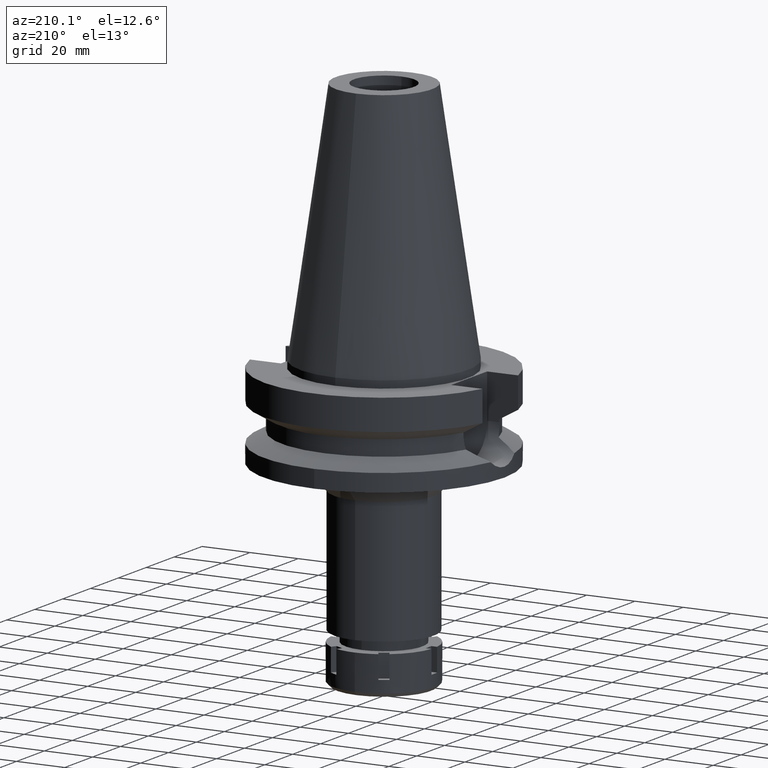
[diagram: clean part render]
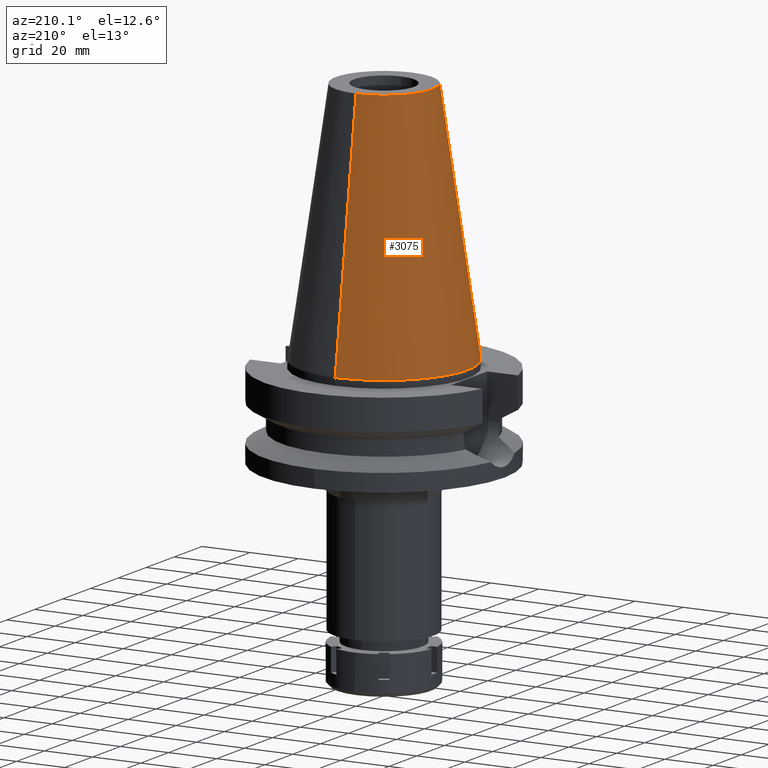
[diagram: same view with one face highlighted and labeled with its STEP entity id]
A machine part, auxiliary view. The second image highlights one B-rep face of the part: STEP entity #3075.
In plain terms, the highlighted conical surface has half-angle 8.297 deg.
Its self-contained STEP definition (entity closure, byte-faithful):
#20 = ORIENTED_EDGE ( 'NONE', *, *, #1357, .F. ) ;
#29 = CIRCLE ( 'NONE', #3298, 20.07942971896000017 ) ;
#154 = VERTEX_POINT ( 'NONE', #3066 ) ;
#160 = LINE ( 'NONE', #1285, #324 ) ;
#324 = VECTOR ( 'NONE', #2975, 1000.000000000000114 ) ;
#435 = VERTEX_POINT ( 'NONE', #2990 ) ;
#714 = EDGE_CURVE ( 'NONE', #1987, #2340, #160, .T. ) ;
#826 = CARTESIAN_POINT ( 'NONE',  ( 0.0000000000000000000, 20.07942971896000017, 101.7999999999999972 ) ) ;
#918 = FACE_OUTER_BOUND ( 'NONE', #1225, .T. ) ;
#1060 = CARTESIAN_POINT ( 'NONE',  ( 0.0000000000000000000, -20.07942971896000017, 101.7999999999999972 ) ) ;
#1182 = CARTESIAN_POINT ( 'NONE',  ( 0.0000000000000000000, 1.847992019912999597E-14, 101.7999999999999972 ) ) ;
#1225 = EDGE_LOOP ( 'NONE', ( #2767, #20, #1975, #3056 ) ) ;
#1285 = CARTESIAN_POINT ( 'NONE',  ( 0.0000000000000000000, 20.07942971896000017, 101.7999999999999972 ) ) ;
#1357 = EDGE_CURVE ( 'NONE', #154, #435, #3289, .T. ) ;
#1517 = CIRCLE ( 'NONE', #3004, 34.92499999999999716 ) ;
#1688 = AXIS2_PLACEMENT_3D ( 'NONE', #1778, #2610, #2338 ) ;
#1778 = CARTESIAN_POINT ( 'NONE',  ( 0.0000000000000000000, 1.847992019912999597E-14, 50.89999999999999858 ) ) ;
#1975 = ORIENTED_EDGE ( 'NONE', *, *, #2712, .T. ) ;
#1987 = VERTEX_POINT ( 'NONE', #826 ) ;
#2057 = DIRECTION ( 'NONE',  ( 0.0000000000000000000, -1.000000000000000000, 0.0000000000000000000 ) ) ;
#2338 = DIRECTION ( 'NONE',  ( 0.0000000000000000000, -1.000000000000000000, 0.0000000000000000000 ) ) ;
#2340 = VERTEX_POINT ( 'NONE', #3508 ) ;
#2579 = DIRECTION ( 'NONE',  ( 0.0000000000000000000, 0.0000000000000000000, -1.000000000000000000 ) ) ;
#2599 = DIRECTION ( 'NONE',  ( 0.0000000000000000000, 0.0000000000000000000, -1.000000000000000000 ) ) ;
#2610 = DIRECTION ( 'NONE',  ( 0.0000000000000000000, 0.0000000000000000000, -1.000000000000000000 ) ) ;
#2706 = DIRECTION ( 'NONE',  ( 0.0000000000000000000, -0.1443043893538948075, -0.9895333461855641000 ) ) ;
#2712 = EDGE_CURVE ( 'NONE', #154, #1987, #29, .T. ) ;
#2767 = ORIENTED_EDGE ( 'NONE', *, *, #3159, .F. ) ;
#2975 = DIRECTION ( 'NONE',  ( 0.0000000000000000000, 0.1443043893538948075, -0.9895333461855641000 ) ) ;
#2990 = CARTESIAN_POINT ( 'NONE',  ( 0.0000000000000000000, -34.92499999999999716, 4.050093593833000200E-13 ) ) ;
#3004 = AXIS2_PLACEMENT_3D ( 'NONE', #3479, #2579, #2057 ) ;
#3056 = ORIENTED_EDGE ( 'NONE', *, *, #714, .T. ) ;
#3066 = CARTESIAN_POINT ( 'NONE',  ( 0.0000000000000000000, -20.07942971896000017, 101.7999999999999972 ) ) ;
#3075 = ADVANCED_FACE ( 'NONE', ( #918 ), #3474, .T. ) ;
#3159 = EDGE_CURVE ( 'NONE', #435, #2340, #1517, .T. ) ;
#3289 = LINE ( 'NONE', #1060, #3402 ) ;
#3298 = AXIS2_PLACEMENT_3D ( 'NONE', #1182, #2599, #3485 ) ;
#3402 = VECTOR ( 'NONE', #2706, 1000.000000000000114 ) ;
#3474 = CONICAL_SURFACE ( 'NONE', #1688, 27.50221485948000222, 0.1448099680379422438 ) ;
#3479 = CARTESIAN_POINT ( 'NONE',  ( 0.0000000000000000000, 1.847992019912999597E-14, 3.979039320256999774E-13 ) ) ;
#3485 = DIRECTION ( 'NONE',  ( 0.0000000000000000000, -1.000000000000000000, 0.0000000000000000000 ) ) ;
#3508 = CARTESIAN_POINT ( 'NONE',  ( 0.0000000000000000000, 34.92499999999999716, 4.050093593833000200E-13 ) ) ;